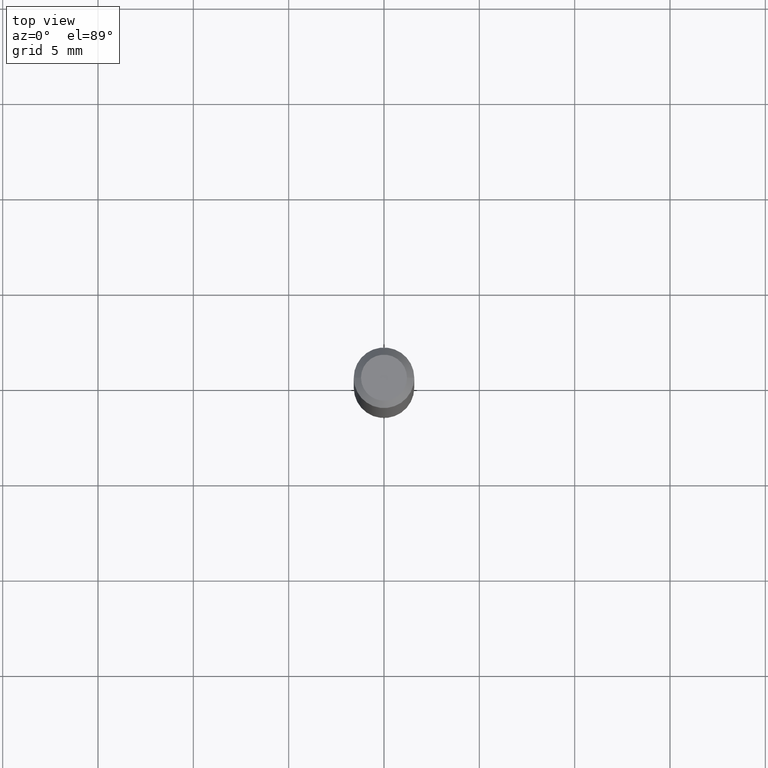
[diagram: clean part render]
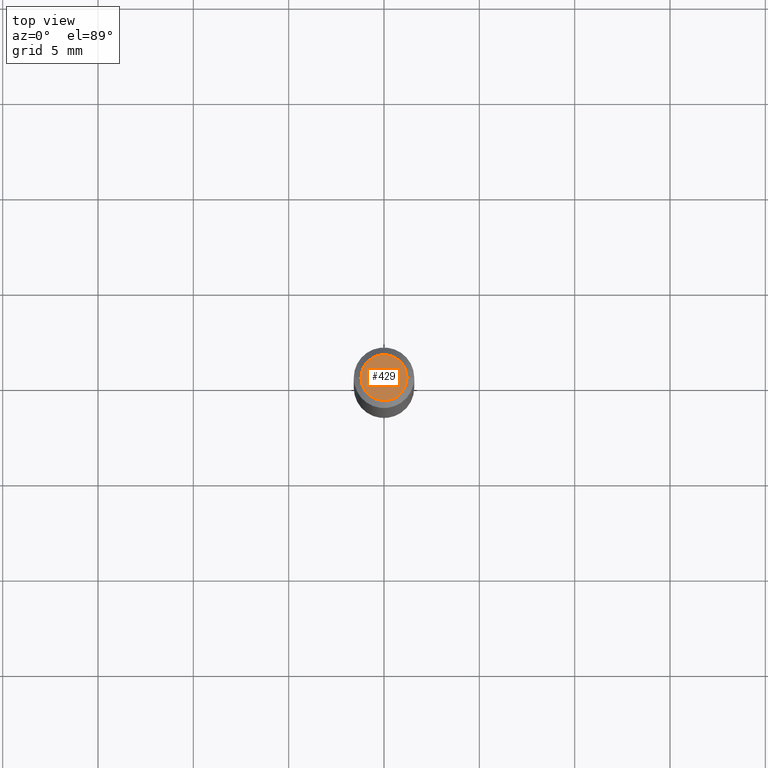
[diagram: same view with one face highlighted and labeled with its STEP entity id]
A machine part, top view. The second image highlights one B-rep face of the part: STEP entity #429.
In plain terms, the highlighted planar face has unit normal (0, -0, -1).
Its self-contained STEP definition (entity closure, byte-faithful):
#10 = PLANE ( 'NONE',  #437 ) ;
#38 = FACE_OUTER_BOUND ( 'NONE', #440, .T. ) ;
#39 = EDGE_CURVE ( 'NONE', #148, #81, #242, .T. ) ;
#56 = CARTESIAN_POINT ( 'NONE',  ( -0.04749999999999999362, 3.578768372314215436E-16, 2.354505479474137135E-16 ) ) ;
#81 = VERTEX_POINT ( 'NONE', #406 ) ;
#92 = CARTESIAN_POINT ( 'NONE',  ( -5.757869704046039586E-45, 8.220711943787967025E-31, 2.354505479474161294E-16 ) ) ;
#148 = VERTEX_POINT ( 'NONE', #56 ) ;
#172 = DIRECTION ( 'NONE',  ( 2.438088387897960049E-29, -3.491481338843145188E-15, -1.000000000000000000 ) ) ;
#182 = CARTESIAN_POINT ( 'NONE',  ( -5.757869704046039586E-45, 8.220711943787967025E-31, 2.354505479474161294E-16 ) ) ;
#192 = DIRECTION ( 'NONE',  ( 1.000000000000000000, -6.982962677686267499E-15, 4.852736867747366768E-29 ) ) ;
#206 = CARTESIAN_POINT ( 'NONE',  ( 3.316907271900976096E-16, 0.04749999999999999362, -4.812008962134135024E-17 ) ) ;
#208 = DIRECTION ( 'NONE',  ( 1.000000000000000000, -6.982962677686267499E-15, 4.852736867747366768E-29 ) ) ;
#228 = DIRECTION ( 'NONE',  ( -2.445468806185136597E-29, 3.491481338843145583E-15, 1.000000000000000000 ) ) ;
#242 = CIRCLE ( 'NONE', #340, 0.04749999999999999362 ) ;
#266 = CIRCLE ( 'NONE', #374, 0.04749999999999999362 ) ;
#283 = DIRECTION ( 'NONE',  ( -2.445468806185136597E-29, 3.491481338843145583E-15, 1.000000000000000000 ) ) ;
#314 = DIRECTION ( 'NONE',  ( -1.000000000000000000, 6.982962677686265922E-15, -4.876176775795935793E-29 ) ) ;
#340 = AXIS2_PLACEMENT_3D ( 'NONE', #92, #228, #192 ) ;
#374 = AXIS2_PLACEMENT_3D ( 'NONE', #182, #283, #208 ) ;
#376 = EDGE_CURVE ( 'NONE', #81, #148, #266, .T. ) ;
#394 = ORIENTED_EDGE ( 'NONE', *, *, #376, .T. ) ;
#406 = CARTESIAN_POINT ( 'NONE',  ( 0.04749999999999999362, -4.035134999187574186E-16, 2.354505479474186932E-16 ) ) ;
#419 = ORIENTED_EDGE ( 'NONE', *, *, #39, .T. ) ;
#429 = ADVANCED_FACE ( 'NONE', ( #38 ), #10, .F. ) ;
#437 = AXIS2_PLACEMENT_3D ( 'NONE', #206, #172, #314 ) ;
#440 = EDGE_LOOP ( 'NONE', ( #419, #394 ) ) ;